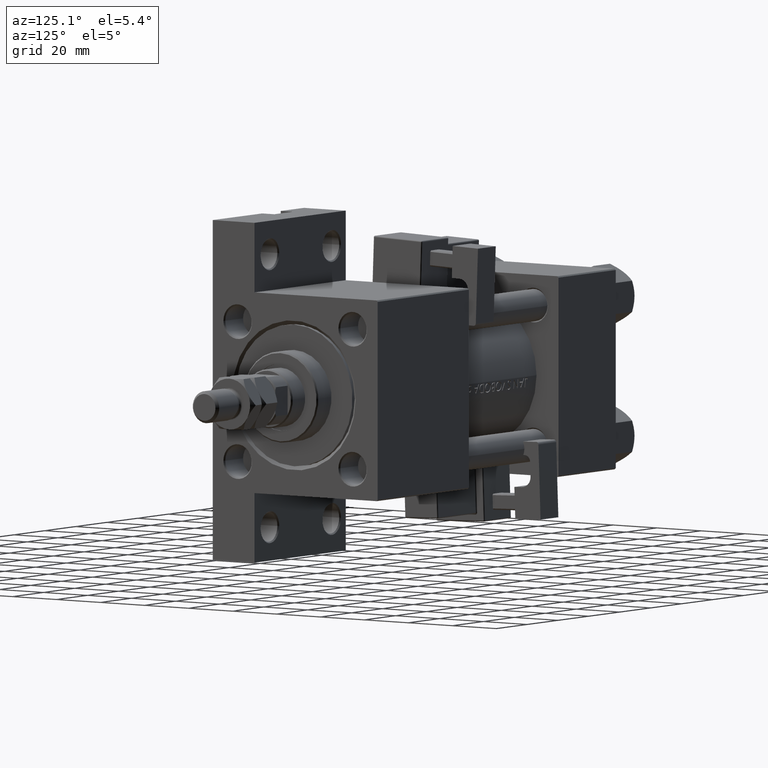
[diagram: clean part render]
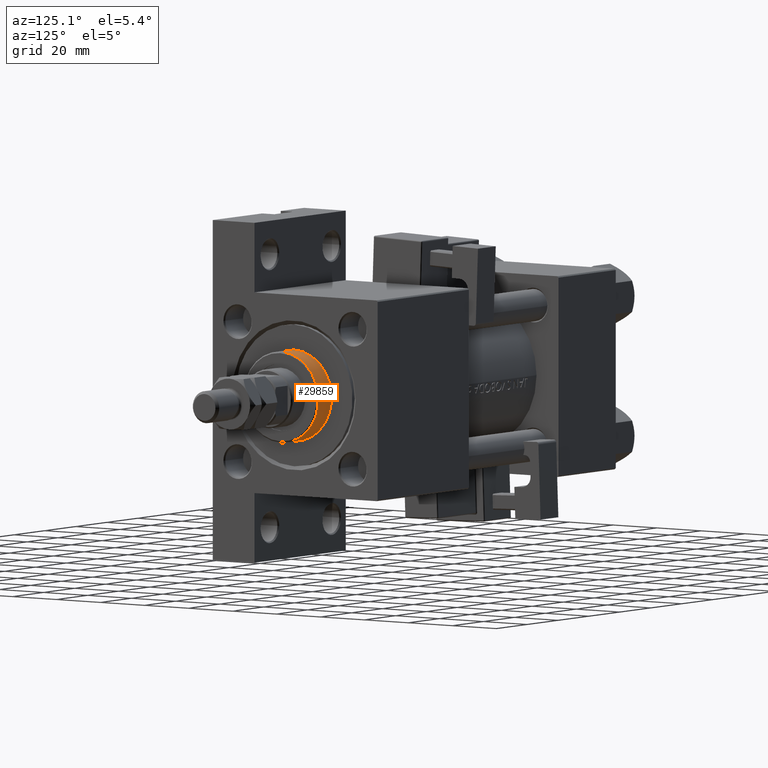
[diagram: same view with one face highlighted and labeled with its STEP entity id]
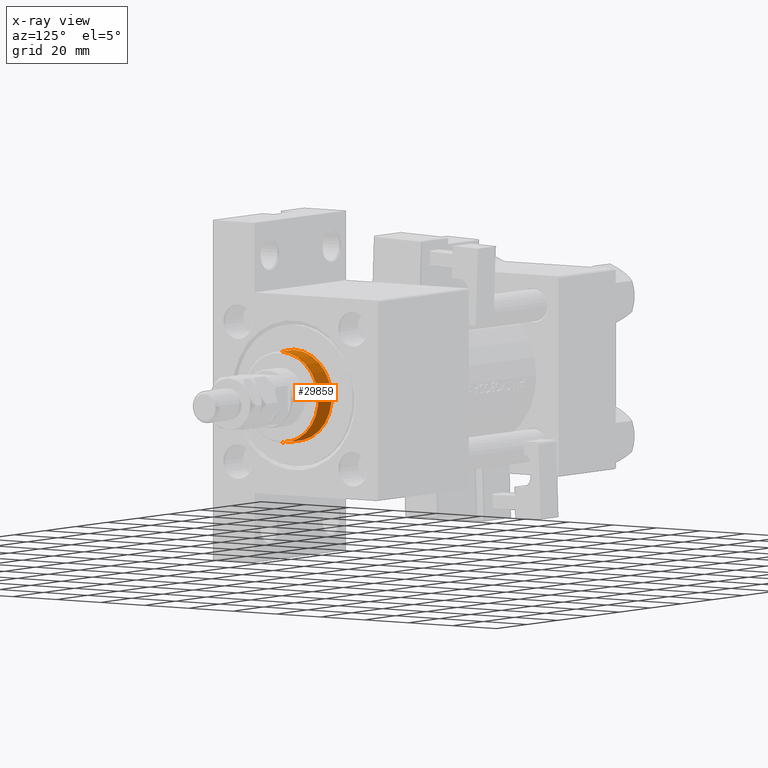
[diagram: x-ray of the same camera — body ghosted, the highlighted face saturated]
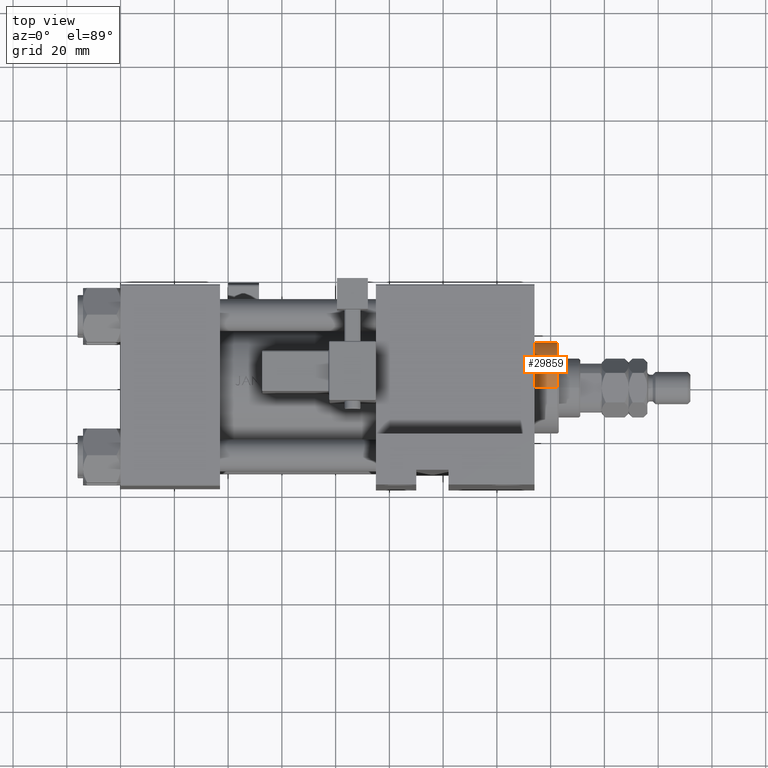
[diagram: same view with one face highlighted and labeled with its STEP entity id]
A machine part, auxiliary view. The second image highlights one B-rep face of the part: STEP entity #29859.
The next image is the same camera in x-ray: the body ghosted, the highlighted face saturated — about 0% of this face is hidden behind the body in this view.
A second angle (top view) of the same face is appended — the face is thin or edge-on in the first view.
In plain terms, the highlighted cylindrical surface (partial cylindrical patch) has radius 17 mm, axis along (-1, 0, 0).
Its self-contained STEP definition (entity closure, byte-faithful):
#316 = VECTOR ( 'NONE', #5335, 1000.000000000000000 ) ;
#2372 = CIRCLE ( 'NONE', #46343, 17.00000000000000000 ) ;
#3054 = VERTEX_POINT ( 'NONE', #36323 ) ;
#3986 = CARTESIAN_POINT ( 'NONE',  ( 17.00000000000000000, 2.081899558550500280E-15, 37.19999999999999574 ) ) ;
#4974 = CARTESIAN_POINT ( 'NONE',  ( 0.000000000000000000, 0.000000000000000000, 28.69999999999999929 ) ) ;
#5335 = DIRECTION ( 'NONE',  ( -0.000000000000000000, -0.000000000000000000, -1.000000000000000000 ) ) ;
#6490 = CARTESIAN_POINT ( 'NONE',  ( 17.00000000000000000, 2.081899558550500280E-15, 37.69999999999999574 ) ) ;
#11739 = AXIS2_PLACEMENT_3D ( 'NONE', #29219, #42223, #25833 ) ;
#12272 = EDGE_CURVE ( 'NONE', #22172, #45603, #25976, .T. ) ;
#15160 = ORIENTED_EDGE ( 'NONE', *, *, #12272, .F. ) ;
#15433 = CYLINDRICAL_SURFACE ( 'NONE', #35985, 17.00000000000000000 ) ;
#16198 = FACE_OUTER_BOUND ( 'NONE', #18575, .T. ) ;
#17449 = EDGE_CURVE ( 'NONE', #3054, #36124, #32632, .T. ) ;
#18575 = EDGE_LOOP ( 'NONE', ( #15160, #31837, #35926, #45353 ) ) ;
#19849 = DIRECTION ( 'NONE',  ( -0.000000000000000000, -0.000000000000000000, -1.000000000000000000 ) ) ;
#20167 = CARTESIAN_POINT ( 'NONE',  ( -17.00000000000000000, 0.000000000000000000, 37.69999999999999574 ) ) ;
#22172 = VERTEX_POINT ( 'NONE', #3986 ) ;
#25833 = DIRECTION ( 'NONE',  ( 1.000000000000000000, 0.000000000000000000, 0.000000000000000000 ) ) ;
#25976 = LINE ( 'NONE', #6490, #47445 ) ;
#29219 = CARTESIAN_POINT ( 'NONE',  ( 0.000000000000000000, 0.000000000000000000, 37.19999999999999574 ) ) ;
#29859 = ADVANCED_FACE ( 'NONE', ( #16198 ), #15433, .T. ) ;
#31469 = CARTESIAN_POINT ( 'NONE',  ( 17.00000000000000000, 2.081899558550500280E-15, 28.69999999999999929 ) ) ;
#31669 = CARTESIAN_POINT ( 'NONE',  ( -17.00000000000000000, 0.000000000000000000, 28.69999999999999929 ) ) ;
#31837 = ORIENTED_EDGE ( 'NONE', *, *, #44210, .T. ) ;
#32316 = CARTESIAN_POINT ( 'NONE',  ( 0.000000000000000000, 0.000000000000000000, 37.69999999999999574 ) ) ;
#32490 = CIRCLE ( 'NONE', #11739, 17.00000000000000000 ) ;
#32632 = LINE ( 'NONE', #20167, #316 ) ;
#33461 = EDGE_CURVE ( 'NONE', #36124, #45603, #2372, .T. ) ;
#35701 = DIRECTION ( 'NONE',  ( -1.000000000000000000, 0.000000000000000000, 0.000000000000000000 ) ) ;
#35926 = ORIENTED_EDGE ( 'NONE', *, *, #17449, .T. ) ;
#35985 = AXIS2_PLACEMENT_3D ( 'NONE', #32316, #19849, #35701 ) ;
#36124 = VERTEX_POINT ( 'NONE', #31669 ) ;
#36323 = CARTESIAN_POINT ( 'NONE',  ( -17.00000000000000000, 0.000000000000000000, 37.19999999999999574 ) ) ;
#37184 = DIRECTION ( 'NONE',  ( 1.000000000000000000, 0.000000000000000000, 0.000000000000000000 ) ) ;
#42223 = DIRECTION ( 'NONE',  ( 0.000000000000000000, 0.000000000000000000, -1.000000000000000000 ) ) ;
#44210 = EDGE_CURVE ( 'NONE', #22172, #3054, #32490, .T. ) ;
#44733 = DIRECTION ( 'NONE',  ( 0.000000000000000000, 0.000000000000000000, 1.000000000000000000 ) ) ;
#45353 = ORIENTED_EDGE ( 'NONE', *, *, #33461, .T. ) ;
#45603 = VERTEX_POINT ( 'NONE', #31469 ) ;
#46003 = DIRECTION ( 'NONE',  ( -0.000000000000000000, -0.000000000000000000, -1.000000000000000000 ) ) ;
#46343 = AXIS2_PLACEMENT_3D ( 'NONE', #4974, #44733, #37184 ) ;
#47445 = VECTOR ( 'NONE', #46003, 1000.000000000000000 ) ;